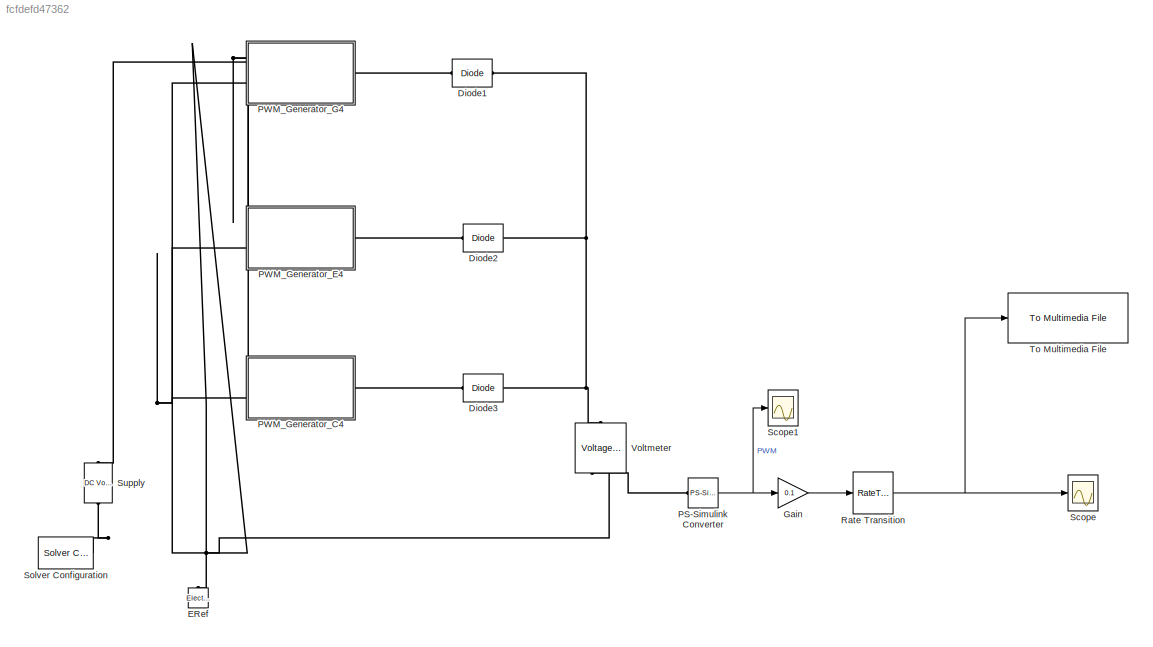
MODEL slx_fcfdefd47362
KIND model
CONFIG AbsTol = auto
CONFIG EnableMultiTasking = off
CONFIG FixedStep = auto
CONFIG MaxStep = auto
CONFIG MinStep = auto
CONFIG RelTol = 1e-3
CONFIG SampleTimeConstraint = Unconstrained
CONFIG Solver = VariableStepAuto
CONFIG SolverName = VariableStepAuto
CONFIG StartTime = 0.0
CONFIG StopTime = 1
BLOCK [Reference] Diode1  REF=ee_lib/Semiconductors &
Converters/Diode
  Ports = [0, 0, 0, 0, 0, 1, 1]
  SourceBlock = ee_lib/Semiconductors &\nConverters/Diode
  SourceProductBaseCode = PS
  SourceType = Diode
BLOCK [Reference] Diode2  REF=ee_lib/Semiconductors &
Converters/Diode
  Ports = [0, 0, 0, 0, 0, 1, 1]
  SourceBlock = ee_lib/Semiconductors &\nConverters/Diode
  SourceProductBaseCode = PS
  SourceType = Diode
BLOCK [Reference] Diode3  REF=ee_lib/Semiconductors &
Converters/Diode
  Ports = [0, 0, 0, 0, 0, 1, 1]
  SourceBlock = ee_lib/Semiconductors &\nConverters/Diode
  SourceProductBaseCode = PS
  SourceType = Diode
BLOCK [Reference] ERef  REF=fl_lib/Electrical/Electrical Elements/Electrical Reference
  NameLocation = right
  Ports = [0, 0, 0, 0, 0, 1]
  SourceBlock = fl_lib/Electrical/Electrical Elements/Electrical Reference
  SourceProductBaseCode = MT,SS
  SourceType = Electrical Reference
BLOCK [Gain] Gain
  Gain = 0.1
BLOCK [Reference] PS-Simulink Converter  REF=nesl_utility/PS-Simulink
Converter
  NameLocation = top
  Ports = [0, 1, 0, 0, 0, 1]
  SourceBlock = nesl_utility/PS-Simulink\nConverter
  SourceProductBaseCode = MT,SS
  SourceType = PS-Simulink\nConverter
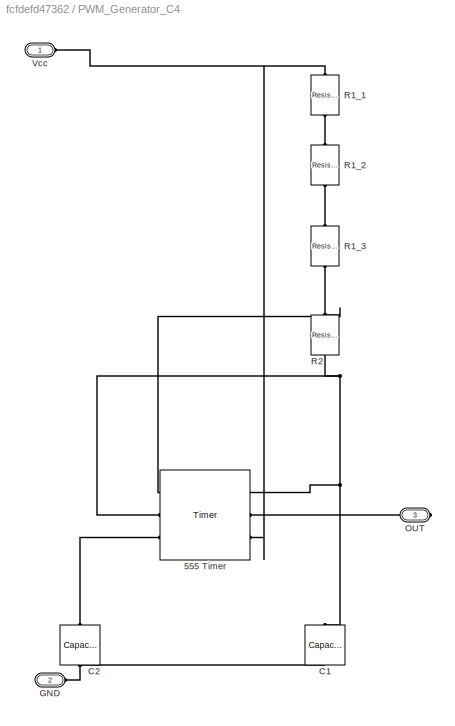
BLOCK [SubSystem] PWM_Generator_C4
  Ports = [0, 0, 0, 0, 0, 2, 1]
  RequestExecContextInheritance = off
BLOCK [Reference] PWM_Generator_C4/555 Timer  REF=ee_lib/Integrated Circuits/Timer
  AttributesFormatString = Vcc = %<V_CC>V
  Ports = [0, 0, 0, 0, 0, 3, 3]
  SourceBlock = ee_lib/Integrated Circuits/Timer
  SourceProductBaseCode = PS
  SourceType = Timer
BLOCK [Reference] PWM_Generator_C4/C1  REF=ee_lib/Passive/Capacitor
  AttributesFormatString = %<c>%<c_unit>
  NameLocation = right
  Ports = [0, 0, 0, 0, 0, 1, 1]
  SourceBlock = ee_lib/Passive/Capacitor
  SourceProductBaseCode = PS
  SourceType = Capacitor
BLOCK [Reference] PWM_Generator_C4/C2  REF=ee_lib/Passive/Capacitor
  AttributesFormatString = %<c>%<c_unit>
  NameLocation = right
  Ports = [0, 0, 0, 0, 0, 1, 1]
  SourceBlock = ee_lib/Passive/Capacitor
  SourceProductBaseCode = PS
  SourceType = Capacitor
BLOCK [PMIOPort] PWM_Generator_C4/GND
  Port = 2
  Side = Left
BLOCK [PMIOPort] PWM_Generator_C4/OUT
  Port = 3
  Side = Right
BLOCK [Reference] PWM_Generator_C4/R1_1  REF=ee_lib/Passive/Resistor
  AttributesFormatString = %<R>%<R_unit>
  NameLocation = left
  Ports = [0, 0, 0, 0, 0, 1, 1]
  SourceBlock = ee_lib/Passive/Resistor
  SourceProductBaseCode = PS
  SourceType = Resistor
BLOCK [Reference] PWM_Generator_C4/R1_2  REF=ee_lib/Passive/Resistor
  AttributesFormatString = %<R>%<R_unit>
  NameLocation = left
  Ports = [0, 0, 0, 0, 0, 1, 1]
  SourceBlock = ee_lib/Passive/Resistor
  SourceProductBaseCode = PS
  SourceType = Resistor
BLOCK [Reference] PWM_Generator_C4/R1_3  REF=ee_lib/Passive/Resistor
  AttributesFormatString = %<R>%<R_unit>
  NameLocation = left
  Ports = [0, 0, 0, 0, 0, 1, 1]
  SourceBlock = ee_lib/Passive/Resistor
  SourceProductBaseCode = PS
  SourceType = Resistor
BLOCK [Reference] PWM_Generator_C4/R2  REF=ee_lib/Passive/Resistor
  AttributesFormatString = %<R>%<R_unit>
  NameLocation = left
  Ports = [0, 0, 0, 0, 0, 1, 1]
  SourceBlock = ee_lib/Passive/Resistor
  SourceProductBaseCode = PS
  SourceType = Resistor
BLOCK [PMIOPort] PWM_Generator_C4/Vcc
  Side = Left
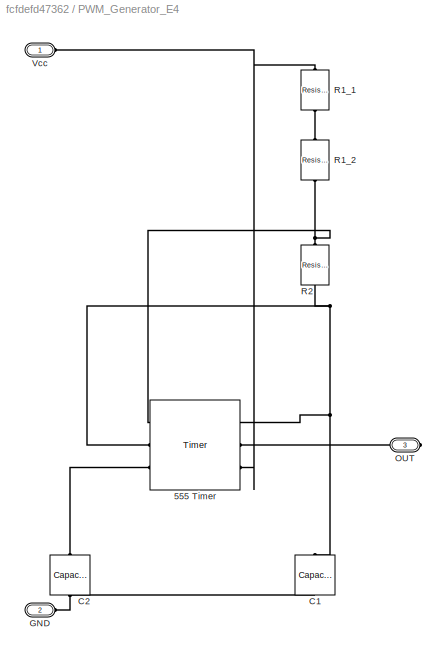
BLOCK [SubSystem] PWM_Generator_E4
  Ports = [0, 0, 0, 0, 0, 2, 1]
  RequestExecContextInheritance = off
BLOCK [Reference] PWM_Generator_E4/555 Timer  REF=ee_lib/Integrated Circuits/Timer
  AttributesFormatString = Vcc = %<V_CC>V
  Ports = [0, 0, 0, 0, 0, 3, 3]
  SourceBlock = ee_lib/Integrated Circuits/Timer
  SourceProductBaseCode = PS
  SourceType = Timer
BLOCK [Reference] PWM_Generator_E4/C1  REF=ee_lib/Passive/Capacitor
  AttributesFormatString = %<c>%<c_unit>
  NameLocation = right
  Ports = [0, 0, 0, 0, 0, 1, 1]
  SourceBlock = ee_lib/Passive/Capacitor
  SourceProductBaseCode = PS
  SourceType = Capacitor
BLOCK [Reference] PWM_Generator_E4/C2  REF=ee_lib/Passive/Capacitor
  AttributesFormatString = %<c>%<c_unit>
  NameLocation = right
  Ports = [0, 0, 0, 0, 0, 1, 1]
  SourceBlock = ee_lib/Passive/Capacitor
  SourceProductBaseCode = PS
  SourceType = Capacitor
BLOCK [PMIOPort] PWM_Generator_E4/GND
  Port = 2
  Side = Left
BLOCK [PMIOPort] PWM_Generator_E4/OUT
  Port = 3
  Side = Right
BLOCK [Reference] PWM_Generator_E4/R1_1  REF=ee_lib/Passive/Resistor
  AttributesFormatString = %<R>%<R_unit>
  NameLocation = left
  Ports = [0, 0, 0, 0, 0, 1, 1]
  SourceBlock = ee_lib/Passive/Resistor
  SourceProductBaseCode = PS
  SourceType = Resistor
BLOCK [Reference] PWM_Generator_E4/R1_2  REF=ee_lib/Passive/Resistor
  AttributesFormatString = %<R>%<R_unit>
  NameLocation = left
  Ports = [0, 0, 0, 0, 0, 1, 1]
  SourceBlock = ee_lib/Passive/Resistor
  SourceProductBaseCode = PS
  SourceType = Resistor
BLOCK [Reference] PWM_Generator_E4/R2  REF=ee_lib/Passive/Resistor
  AttributesFormatString = %<R>%<R_unit>
  NameLocation = left
  Ports = [0, 0, 0, 0, 0, 1, 1]
  SourceBlock = ee_lib/Passive/Resistor
  SourceProductBaseCode = PS
  SourceType = Resistor
BLOCK [PMIOPort] PWM_Generator_E4/Vcc
  Side = Left
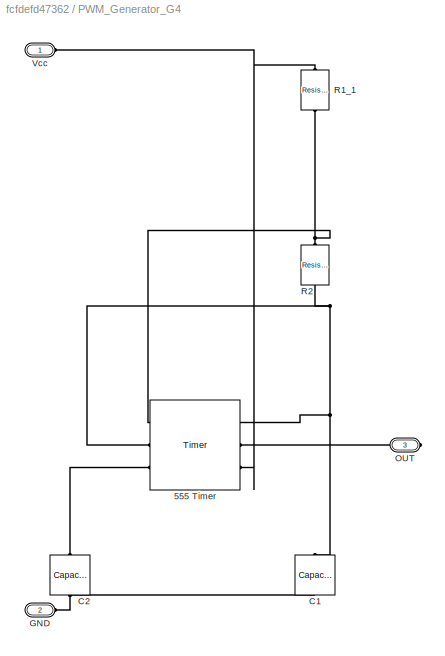
BLOCK [SubSystem] PWM_Generator_G4
  Ports = [0, 0, 0, 0, 0, 2, 1]
  RequestExecContextInheritance = off
BLOCK [Reference] PWM_Generator_G4/555 Timer  REF=ee_lib/Integrated Circuits/Timer
  AttributesFormatString = Vcc = %<V_CC>V
  Ports = [0, 0, 0, 0, 0, 3, 3]
  SourceBlock = ee_lib/Integrated Circuits/Timer
  SourceProductBaseCode = PS
  SourceType = Timer
BLOCK [Reference] PWM_Generator_G4/C1  REF=ee_lib/Passive/Capacitor
  AttributesFormatString = %<c>%<c_unit>
  NameLocation = right
  Ports = [0, 0, 0, 0, 0, 1, 1]
  SourceBlock = ee_lib/Passive/Capacitor
  SourceProductBaseCode = PS
  SourceType = Capacitor
BLOCK [Reference] PWM_Generator_G4/C2  REF=ee_lib/Passive/Capacitor
  AttributesFormatString = %<c>%<c_unit>
  NameLocation = right
  Ports = [0, 0, 0, 0, 0, 1, 1]
  SourceBlock = ee_lib/Passive/Capacitor
  SourceProductBaseCode = PS
  SourceType = Capacitor
BLOCK [PMIOPort] PWM_Generator_G4/GND
  Port = 2
  Side = Left
BLOCK [PMIOPort] PWM_Generator_G4/OUT
  Port = 3
  Side = Right
BLOCK [Reference] PWM_Generator_G4/R1_1  REF=ee_lib/Passive/Resistor
  AttributesFormatString = %<R>%<R_unit>
  NameLocation = left
  Ports = [0, 0, 0, 0, 0, 1, 1]
  SourceBlock = ee_lib/Passive/Resistor
  SourceProductBaseCode = PS
  SourceType = Resistor
BLOCK [Reference] PWM_Generator_G4/R2  REF=ee_lib/Passive/Resistor
  AttributesFormatString = %<R>%<R_unit>
  NameLocation = left
  Ports = [0, 0, 0, 0, 0, 1, 1]
  SourceBlock = ee_lib/Passive/Resistor
  SourceProductBaseCode = PS
  SourceType = Resistor
BLOCK [PMIOPort] PWM_Generator_G4/Vcc
  Side = Left
BLOCK [RateTransition] Rate Transition
  AttributesFormatString = SampleTime = %<OutPortSampleTime>[sec]
  OutPortSampleTime = 1/44100
BLOCK [Scope] Scope
  Floating = off
  NumInputPorts = 1
  Ports = [1]
  ScopeSpecificationString = Simulink.scopes.TimeScopeBlockCfg('CurrentConfiguration', extmgr.ConfigurationSet(extmgr.Configuration('Core','General UI',true),extmgr.Configuration('Core','Source UI',true),extmgr.Configuration('Sources','WiredSimulink',true,'DataLoggingLimitDataPoints',true),extmgr.Configuration('Visuals','Time Domain',true,'SerializedDisplays',{struct('MinYLimReal','-0.09603','MaxYLimReal','0.86424','YLabelRea...<+2182ch>
  Tag = PublishScope
BLOCK [Scope] Scope1
  Floating = off
  NumInputPorts = 1
  Ports = [1]
  ScopeSpecificationString = Simulink.scopes.TimeScopeBlockCfg('CurrentConfiguration', extmgr.ConfigurationSet(extmgr.Configuration('Core','General UI',true),extmgr.Configuration('Core','Source UI',true),extmgr.Configuration('Sources','WiredSimulink',true,'DataLoggingLimitDataPoints',true,'DataLoggingVariableName','ScopeData1'),extmgr.Configuration('Visuals','Time Domain',true,'SerializedDisplays',{struct('MinYLimReal','-0.79...<+2256ch>
  Tag = PublishScope
BLOCK [Reference] Solver Configuration  REF=nesl_utility/Solver
Configuration
  Ports = [0, 0, 0, 0, 0, 0, 1]
  SourceBlock = nesl_utility/Solver\nConfiguration
  SourceProductBaseCode = MT,SS
  SourceType = Solver\nConfiguration
BLOCK [Reference] Supply  REF=fl_lib/Electrical/Electrical Sources/DC Voltage Source
  AttributesFormatString = %<v0>V
  NameLocation = left
  Ports = [0, 0, 0, 0, 0, 1, 1]
  SourceBlock = fl_lib/Electrical/Electrical Sources/DC Voltage Source
  SourceProductBaseCode = MT,SS
  SourceType = DC Voltage Source
BLOCK [Reference] To Multimedia File  REF=dspvision/To Multimedia File
  Ports = [1]
  SourceBlock = dspvision/To Multimedia File
  SourceProductBaseCode = DS,HW,VP
  SourceType = To Multimedia File
BLOCK [Reference] Voltmeter  REF=fl_lib/Electrical/Electrical Sensors/Voltage Sensor
  NameLocation = left
  Ports = [0, 0, 0, 0, 0, 1, 2]
  SourceBlock = fl_lib/Electrical/Electrical Sensors/Voltage Sensor
  SourceProductBaseCode = MT,SS
  SourceType = Voltage Sensor
LINE Gain:1 -> Rate Transition:1
NET PS-Simulink Converter:1 -> Gain:1, Scope1:1
NET Rate Transition:1 -> Scope:1, To Multimedia File:1
PLINE Diode1:LConn1 -- PWM_Generator_G4:RConn1
PNET net1: Diode1:RConn1 -- Diode2:RConn1 -- Diode3:RConn1 -- Voltmeter:LConn1
PLINE Diode2:LConn1 -- PWM_Generator_E4:RConn1
PLINE Diode3:LConn1 -- PWM_Generator_C4:RConn1
PNET net2: ERef:LConn1 -- PWM_Generator_C4:LConn2 -- PWM_Generator_E4:LConn2 -- PWM_Generator_G4:LConn2 -- Solver Configuration:RConn1 -- Supply:RConn1 -- Voltmeter:RConn2
PLINE PS-Simulink Converter:LConn1 -- Voltmeter:RConn1
PNET net3: PWM_Generator_C4/555 Timer:LConn1 -- PWM_Generator_C4/555 Timer:RConn2 -- PWM_Generator_C4/C1:LConn1 -- PWM_Generator_C4/R2:LConn1
PLINE PWM_Generator_C4/555 Timer:LConn2 -- PWM_Generator_C4/OUT:RConn1
PNET net4: PWM_Generator_C4/555 Timer:LConn3 -- PWM_Generator_C4/R1_1:RConn1 -- PWM_Generator_C4/Vcc:RConn1
PNET net5: PWM_Generator_C4/555 Timer:RConn1 -- PWM_Generator_C4/R1_3:LConn1 -- PWM_Generator_C4/R2:RConn1
PLINE PWM_Generator_C4/555 Timer:RConn3 -- PWM_Generator_C4/C2:LConn1
PNET net6: PWM_Generator_C4/C1:RConn1 -- PWM_Generator_C4/C2:RConn1 -- PWM_Generator_C4/GND:RConn1
PLINE PWM_Generator_C4/R1_1:LConn1 -- PWM_Generator_C4/R1_2:RConn1
PLINE PWM_Generator_C4/R1_2:LConn1 -- PWM_Generator_C4/R1_3:RConn1
PNET net7: PWM_Generator_C4:LConn1 -- PWM_Generator_E4:LConn1 -- PWM_Generator_G4:LConn1 -- Supply:LConn1
PNET net8: PWM_Generator_E4/555 Timer:LConn1 -- PWM_Generator_E4/555 Timer:RConn2 -- PWM_Generator_E4/C1:LConn1 -- PWM_Generator_E4/R2:LConn1
PLINE PWM_Generator_E4/555 Timer:LConn2 -- PWM_Generator_E4/OUT:RConn1
PNET net9: PWM_Generator_E4/555 Timer:LConn3 -- PWM_Generator_E4/R1_1:RConn1 -- PWM_Generator_E4/Vcc:RConn1
PNET net10: PWM_Generator_E4/555 Timer:RConn1 -- PWM_Generator_E4/R1_2:LConn1 -- PWM_Generator_E4/R2:RConn1
PLINE PWM_Generator_E4/555 Timer:RConn3 -- PWM_Generator_E4/C2:LConn1
PNET net11: PWM_Generator_E4/C1:RConn1 -- PWM_Generator_E4/C2:RConn1 -- PWM_Generator_E4/GND:RConn1
PLINE PWM_Generator_E4/R1_1:LConn1 -- PWM_Generator_E4/R1_2:RConn1
PNET net12: PWM_Generator_G4/555 Timer:LConn1 -- PWM_Generator_G4/555 Timer:RConn2 -- PWM_Generator_G4/C1:LConn1 -- PWM_Generator_G4/R2:LConn1
PLINE PWM_Generator_G4/555 Timer:LConn2 -- PWM_Generator_G4/OUT:RConn1
PNET net13: PWM_Generator_G4/555 Timer:LConn3 -- PWM_Generator_G4/R1_1:RConn1 -- PWM_Generator_G4/Vcc:RConn1
PNET net14: PWM_Generator_G4/555 Timer:RConn1 -- PWM_Generator_G4/R1_1:LConn1 -- PWM_Generator_G4/R2:RConn1
PLINE PWM_Generator_G4/555 Timer:RConn3 -- PWM_Generator_G4/C2:LConn1
PNET net15: PWM_Generator_G4/C1:RConn1 -- PWM_Generator_G4/C2:RConn1 -- PWM_Generator_G4/GND:RConn1
note: NET lines group one-source signal fan-out (src -> all destinations, sorted); 1:1 wires keep LINE; PNET lines group multi-terminal physical nets as a canonical sorted terminal list (undirected conserving connections); 2-terminal nets keep the pairwise PLINE form
